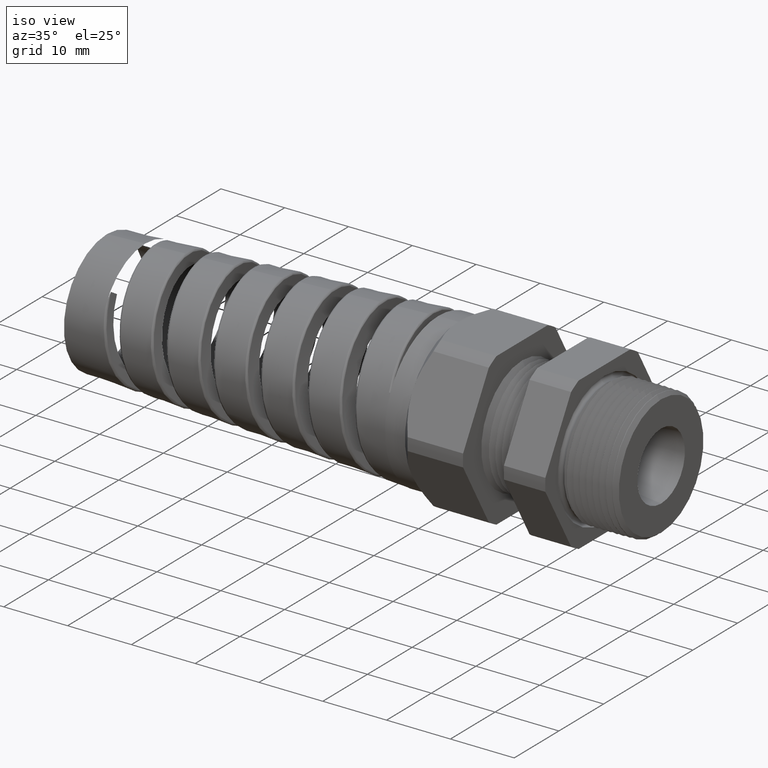
[diagram: clean part render]
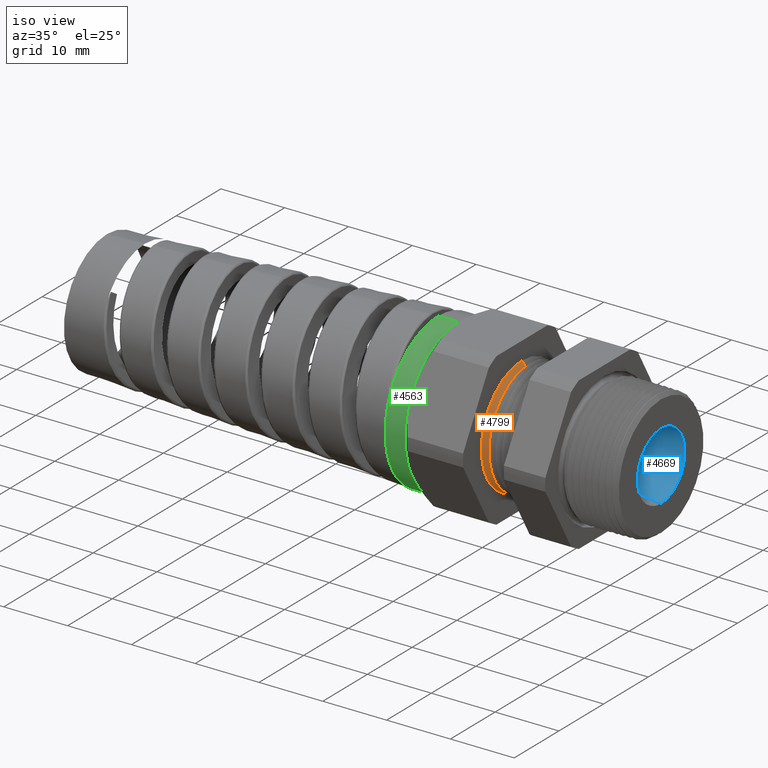
[diagram: same view with three faces highlighted in distinct colors, each labeled with its STEP entity id]
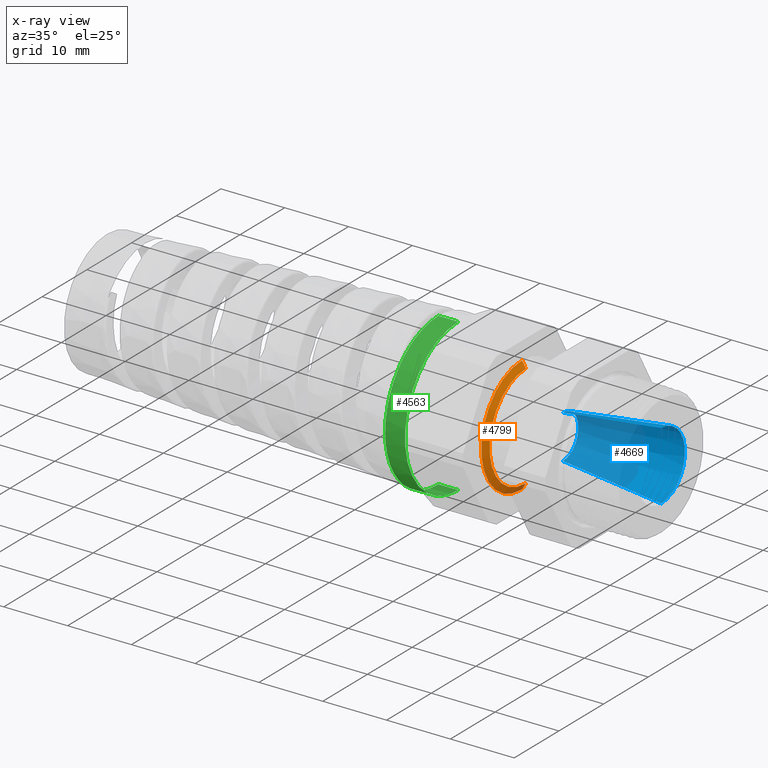
[diagram: x-ray of the same camera — body ghosted, the three highlighted faces saturated]
A machine part, iso view with three faces highlighted in distinct colors.
The next image is the same camera in x-ray (body ghosted, the three faces saturated) — at least one of them is partly hidden behind the body in this view.
Their STEP definitions:

[orange] entity #4799 — the highlighted conical surface has half-angle 60 deg.
#2068 = CARTESIAN_POINT ( 'NONE',  ( -0.7944650443505257800, 0.0000000000000000000, 0.3200000000000001200 ) ) ;
#2069 = CARTESIAN_POINT ( 'NONE',  ( -0.7944650443505257800, 4.163799117101002200E-017, -0.3200000000000001200 ) ) ;
#2101 = DIRECTION ( 'NONE',  ( -0.4999999999999913400, 0.0000000000000000000, 0.8660254037844434800 ) ) ;
#2102 = VECTOR ( 'NONE', #2101, 39.37007874015748900 ) ;
#2103 = CARTESIAN_POINT ( 'NONE',  ( -0.8175590551181102200, 0.0000000000000000000, 0.3600000000000001000 ) ) ;
#2104 = LINE ( 'NONE', #2103, #2102 ) ;
#2105 = CARTESIAN_POINT ( 'NONE',  ( -0.8175590551181102200, 0.0000000000000000000, 0.3600000000000001000 ) ) ;
#2111 = CARTESIAN_POINT ( 'NONE',  ( -0.8175590551181102200, 4.408728476930472900E-017, -0.3600000000000001000 ) ) ;
#2112 = DIRECTION ( 'NONE',  ( -0.4999999999999913400, 1.060575238724912700E-016, -0.8660254037844434800 ) ) ;
#2113 = VECTOR ( 'NONE', #2112, 39.37007874015748900 ) ;
#2114 = CARTESIAN_POINT ( 'NONE',  ( -0.8175590551181102200, 4.408728476930472900E-017, -0.3600000000000001000 ) ) ;
#2119 = LINE ( 'NONE', #2114, #2113 ) ;
#4772 = EDGE_CURVE ( 'NONE', #5581, #5578, #7518, .T. ) ;
#4799 = ADVANCED_FACE ( 'NONE', ( #7602 ), #7601, .T. ) ;
#4800 = EDGE_LOOP ( 'NONE', ( #4801, #4802, #4804, #4806 ) ) ;
#4801 = ORIENTED_EDGE ( 'NONE', *, *, #5577, .F. ) ;
#4802 = ORIENTED_EDGE ( 'NONE', *, *, #4803, .F. ) ;
#4803 = EDGE_CURVE ( 'NONE', #5567, #5566, #7595, .T. ) ;
#4804 = ORIENTED_EDGE ( 'NONE', *, *, #5583, .T. ) ;
#4806 = ORIENTED_EDGE ( 'NONE', *, *, #4772, .T. ) ;
#5566 = VERTEX_POINT ( 'NONE', #2069 ) ;
#5567 = VERTEX_POINT ( 'NONE', #2068 ) ;
#5577 = EDGE_CURVE ( 'NONE', #5566, #5578, #2119, .T. ) ;
#5578 = VERTEX_POINT ( 'NONE', #2111 ) ;
#5581 = VERTEX_POINT ( 'NONE', #2105 ) ;
#5583 = EDGE_CURVE ( 'NONE', #5567, #5581, #2104, .T. ) ;
#7514 = DIRECTION ( 'NONE',  ( 0.0000000000000000000, 0.0000000000000000000, -1.000000000000000000 ) ) ;
#7515 = DIRECTION ( 'NONE',  ( 1.000000000000000000, 0.0000000000000000000, 0.0000000000000000000 ) ) ;
#7516 = CARTESIAN_POINT ( 'NONE',  ( -0.8175590551181102200, 0.0000000000000000000, 0.0000000000000000000 ) ) ;
#7517 = AXIS2_PLACEMENT_3D ( 'NONE', #7516, #7515, #7514 ) ;
#7518 = CIRCLE ( 'NONE', #7517, 0.3600000000000001000 ) ;
#7592 = DIRECTION ( 'NONE',  ( 0.0000000000000000000, 0.0000000000000000000, -1.000000000000000000 ) ) ;
#7593 = DIRECTION ( 'NONE',  ( 1.000000000000000000, 0.0000000000000000000, 0.0000000000000000000 ) ) ;
#7594 = AXIS2_PLACEMENT_3D ( 'NONE', #7600, #7593, #7592 ) ;
#7595 = CIRCLE ( 'NONE', #7594, 0.3200000000000001200 ) ;
#7596 = DIRECTION ( 'NONE',  ( 0.0000000000000000000, 0.0000000000000000000, 1.000000000000000000 ) ) ;
#7597 = DIRECTION ( 'NONE',  ( -1.000000000000000000, 0.0000000000000000000, 0.0000000000000000000 ) ) ;
#7598 = CARTESIAN_POINT ( 'NONE',  ( -0.8175590551181102200, 0.0000000000000000000, 0.0000000000000000000 ) ) ;
#7599 = AXIS2_PLACEMENT_3D ( 'NONE', #7598, #7597, #7596 ) ;
#7600 = CARTESIAN_POINT ( 'NONE',  ( -0.7944650443505257800, 0.0000000000000000000, 0.0000000000000000000 ) ) ;
#7601 = CONICAL_SURFACE ( 'NONE', #7599, 0.3600000000000001000, 1.047197551196607600 ) ;
#7602 = FACE_OUTER_BOUND ( 'NONE', #4800, .T. ) ;

[blue] entity #4669 — the highlighted conical surface has half-angle 7 deg.
#2094 = CARTESIAN_POINT ( 'NONE',  ( -0.5659055118110234400, 0.0000000000000000000, -0.1350000000000000100 ) ) ;
#2100 = CARTESIAN_POINT ( 'NONE',  ( -0.5659055118110234400, 2.108816329049623800E-017, 0.1350000000000000100 ) ) ;
#2133 = DIRECTION ( 'NONE',  ( 0.9925461516413227600, 0.0000000000000000000, -0.1218693434051409100 ) ) ;
#2134 = VECTOR ( 'NONE', #2133, 39.37007874015748900 ) ;
#2135 = CARTESIAN_POINT ( 'NONE',  ( -0.5659055118110234400, 0.0000000000000000000, -0.1350000000000000100 ) ) ;
#2136 = LINE ( 'NONE', #2135, #2134 ) ;
#2137 = CARTESIAN_POINT ( 'NONE',  ( 0.03999999999999998000, 0.0000000000000000000, -0.2093958422163621200 ) ) ;
#2143 = CARTESIAN_POINT ( 'NONE',  ( 0.03999999999999998000, 2.564359479250321300E-017, 0.2093958422163621200 ) ) ;
#2144 = DIRECTION ( 'NONE',  ( 0.9925461516413227600, 1.492469013152954000E-017, 0.1218693434051409100 ) ) ;
#2145 = VECTOR ( 'NONE', #2144, 39.37007874015748900 ) ;
#2146 = CARTESIAN_POINT ( 'NONE',  ( -0.5659055118110234400, 1.653273178848926900E-017, 0.1350000000000000100 ) ) ;
#2152 = LINE ( 'NONE', #2146, #2145 ) ;
#4646 = ORIENTED_EDGE ( 'NONE', *, *, #5594, .F. ) ;
#4647 = ORIENTED_EDGE ( 'NONE', *, *, #4648, .F. ) ;
#4648 = EDGE_CURVE ( 'NONE', #5587, #5584, #7325, .T. ) ;
#4649 = ORIENTED_EDGE ( 'NONE', *, *, #5601, .T. ) ;
#4650 = ORIENTED_EDGE ( 'NONE', *, *, #4667, .T. ) ;
#4667 = EDGE_CURVE ( 'NONE', #5598, #5595, #7367, .T. ) ;
#4669 = ADVANCED_FACE ( 'NONE', ( #7362 ), #7361, .F. ) ;
#4670 = EDGE_LOOP ( 'NONE', ( #4646, #4647, #4649, #4650 ) ) ;
#5584 = VERTEX_POINT ( 'NONE', #2100 ) ;
#5587 = VERTEX_POINT ( 'NONE', #2094 ) ;
#5594 = EDGE_CURVE ( 'NONE', #5584, #5595, #2152, .T. ) ;
#5595 = VERTEX_POINT ( 'NONE', #2143 ) ;
#5598 = VERTEX_POINT ( 'NONE', #2137 ) ;
#5601 = EDGE_CURVE ( 'NONE', #5587, #5598, #2136, .T. ) ;
#7321 = DIRECTION ( 'NONE',  ( 0.0000000000000000000, 0.0000000000000000000, -1.000000000000000000 ) ) ;
#7322 = DIRECTION ( 'NONE',  ( 1.000000000000000000, 0.0000000000000000000, 0.0000000000000000000 ) ) ;
#7323 = CARTESIAN_POINT ( 'NONE',  ( -0.5659055118110234400, 0.0000000000000000000, 0.0000000000000000000 ) ) ;
#7324 = AXIS2_PLACEMENT_3D ( 'NONE', #7323, #7322, #7321 ) ;
#7325 = CIRCLE ( 'NONE', #7324, 0.1350000000000000100 ) ;
#7356 = DIRECTION ( 'NONE',  ( 0.0000000000000000000, 0.0000000000000000000, -1.000000000000000000 ) ) ;
#7357 = DIRECTION ( 'NONE',  ( 1.000000000000000000, 0.0000000000000000000, 0.0000000000000000000 ) ) ;
#7358 = CARTESIAN_POINT ( 'NONE',  ( -0.5659055118110234400, 0.0000000000000000000, 0.0000000000000000000 ) ) ;
#7359 = AXIS2_PLACEMENT_3D ( 'NONE', #7358, #7357, #7356 ) ;
#7361 = CONICAL_SURFACE ( 'NONE', #7359, 0.1350000000000000100, 0.1221730476395964700 ) ;
#7362 = FACE_OUTER_BOUND ( 'NONE', #4670, .T. ) ;
#7363 = DIRECTION ( 'NONE',  ( 0.0000000000000000000, 0.0000000000000000000, -1.000000000000000000 ) ) ;
#7364 = DIRECTION ( 'NONE',  ( 1.000000000000000000, 0.0000000000000000000, 0.0000000000000000000 ) ) ;
#7365 = CARTESIAN_POINT ( 'NONE',  ( 0.03999999999999998000, 0.0000000000000000000, 0.0000000000000000000 ) ) ;
#7366 = AXIS2_PLACEMENT_3D ( 'NONE', #7365, #7364, #7363 ) ;
#7367 = CIRCLE ( 'NONE', #7366, 0.2093958422163621200 ) ;

[green] entity #4563 — the highlighted cylindrical surface (partial cylindrical patch) has radius 11.938 mm, axis along (1, 0, 0).
#2415 = DIRECTION ( 'NONE',  ( 1.000000000000000000, 0.0000000000000000000, 0.0000000000000000000 ) ) ;
#2416 = VECTOR ( 'NONE', #2415, 39.37007874015748100 ) ;
#2417 = CARTESIAN_POINT ( 'NONE',  ( 0.09602717987635048200, 0.0000000000000000000, -0.4699999999999999700 ) ) ;
#2418 = LINE ( 'NONE', #2417, #2416 ) ;
#2424 = CARTESIAN_POINT ( 'NONE',  ( -1.211259842519685200, 0.0000000000000000000, -0.4700000000000000300 ) ) ;
#2728 = CARTESIAN_POINT ( 'NONE',  ( -1.211259842519685200, 0.0000000000000000000, 0.4699999999999999200 ) ) ;
#2729 = DIRECTION ( 'NONE',  ( 1.000000000000000000, 0.0000000000000000000, 0.0000000000000000000 ) ) ;
#2730 = VECTOR ( 'NONE', #2729, 39.37007874015748100 ) ;
#2731 = CARTESIAN_POINT ( 'NONE',  ( 0.09602717987635048200, 5.755839955992559700E-017, 0.4699999999999999700 ) ) ;
#2732 = LINE ( 'NONE', #2731, #2730 ) ;
#2733 = CARTESIAN_POINT ( 'NONE',  ( -1.333939906722928300, 0.0000000000000000000, -0.4699999999999999200 ) ) ;
#2734 = CARTESIAN_POINT ( 'NONE',  ( -1.333939906722928300, 5.755839955992559700E-017, 0.4699999999999999200 ) ) ;
#4498 = VERTEX_POINT ( 'NONE', #6918 ) ;
#4550 = VERTEX_POINT ( 'NONE', #7043 ) ;
#4563 = ADVANCED_FACE ( 'NONE', ( #7110 ), #7108, .T. ) ;
#4564 = EDGE_LOOP ( 'NONE', ( #4565, #4566, #4619, #4620, #4622, #4624 ) ) ;
#4565 = ORIENTED_EDGE ( 'NONE', *, *, #5733, .F. ) ;
#4566 = ORIENTED_EDGE ( 'NONE', *, *, #4618, .F. ) ;
#4618 = EDGE_CURVE ( 'NONE', #5731, #5730, #7224, .T. ) ;
#4619 = ORIENTED_EDGE ( 'NONE', *, *, #5690, .T. ) ;
#4620 = ORIENTED_EDGE ( 'NONE', *, *, #4621, .F. ) ;
#4621 = EDGE_CURVE ( 'NONE', #4550, #5688, #7280, .T. ) ;
#4622 = ORIENTED_EDGE ( 'NONE', *, *, #4623, .F. ) ;
#4623 = EDGE_CURVE ( 'NONE', #4498, #4550, #7275, .T. ) ;
#4624 = ORIENTED_EDGE ( 'NONE', *, *, #4625, .F. ) ;
#4625 = EDGE_CURVE ( 'NONE', #5734, #4498, #7270, .T. ) ;
#5688 = VERTEX_POINT ( 'NONE', #2424 ) ;
#5690 = EDGE_CURVE ( 'NONE', #5731, #5688, #2418, .T. ) ;
#5730 = VERTEX_POINT ( 'NONE', #2734 ) ;
#5731 = VERTEX_POINT ( 'NONE', #2733 ) ;
#5733 = EDGE_CURVE ( 'NONE', #5730, #5734, #2732, .T. ) ;
#5734 = VERTEX_POINT ( 'NONE', #2728 ) ;
#6918 = CARTESIAN_POINT ( 'NONE',  ( -1.211259842519685200, -0.4070319397786864000, 0.2349999999999998800 ) ) ;
#7043 = CARTESIAN_POINT ( 'NONE',  ( -1.211259842519685200, -0.4070319397786862400, -0.2350000000000001000 ) ) ;
#7105 = DIRECTION ( 'NONE',  ( 0.0000000000000000000, 0.0000000000000000000, -1.000000000000000000 ) ) ;
#7106 = DIRECTION ( 'NONE',  ( 1.000000000000000000, 0.0000000000000000000, 0.0000000000000000000 ) ) ;
#7107 = AXIS2_PLACEMENT_3D ( 'NONE', #7109, #7106, #7105 ) ;
#7108 = CYLINDRICAL_SURFACE ( 'NONE', #7107, 0.4699999999999999700 ) ;
#7109 = CARTESIAN_POINT ( 'NONE',  ( 0.09602717987635048200, 0.0000000000000000000, 0.0000000000000000000 ) ) ;
#7110 = FACE_OUTER_BOUND ( 'NONE', #4564, .T. ) ;
#7224 = CIRCLE ( 'NONE', #7283, 0.4699999999999999200 ) ;
#7229 = CARTESIAN_POINT ( 'NONE',  ( -1.333939906722928300, 0.0000000000000000000, 0.0000000000000000000 ) ) ;
#7266 = DIRECTION ( 'NONE',  ( 0.0000000000000000000, 0.0000000000000000000, -1.000000000000000000 ) ) ;
#7267 = DIRECTION ( 'NONE',  ( 1.000000000000000000, 0.0000000000000000000, 0.0000000000000000000 ) ) ;
#7268 = CARTESIAN_POINT ( 'NONE',  ( -1.211259842519685200, 0.0000000000000000000, 0.0000000000000000000 ) ) ;
#7269 = AXIS2_PLACEMENT_3D ( 'NONE', #7268, #7267, #7266 ) ;
#7270 = CIRCLE ( 'NONE', #7269, 0.4699999999999999700 ) ;
#7271 = DIRECTION ( 'NONE',  ( 0.0000000000000000000, 0.0000000000000000000, -1.000000000000000000 ) ) ;
#7272 = DIRECTION ( 'NONE',  ( 1.000000000000000000, 0.0000000000000000000, 0.0000000000000000000 ) ) ;
#7273 = CARTESIAN_POINT ( 'NONE',  ( -1.211259842519685200, 0.0000000000000000000, 0.0000000000000000000 ) ) ;
#7274 = AXIS2_PLACEMENT_3D ( 'NONE', #7273, #7272, #7271 ) ;
#7275 = CIRCLE ( 'NONE', #7274, 0.4699999999999999700 ) ;
#7276 = DIRECTION ( 'NONE',  ( 0.0000000000000000000, 0.0000000000000000000, -1.000000000000000000 ) ) ;
#7277 = DIRECTION ( 'NONE',  ( 1.000000000000000000, 0.0000000000000000000, 0.0000000000000000000 ) ) ;
#7278 = CARTESIAN_POINT ( 'NONE',  ( -1.211259842519685200, 0.0000000000000000000, 0.0000000000000000000 ) ) ;
#7279 = AXIS2_PLACEMENT_3D ( 'NONE', #7278, #7277, #7276 ) ;
#7280 = CIRCLE ( 'NONE', #7279, 0.4699999999999999700 ) ;
#7281 = DIRECTION ( 'NONE',  ( 0.0000000000000000000, 0.0000000000000000000, 1.000000000000000000 ) ) ;
#7282 = DIRECTION ( 'NONE',  ( -1.000000000000000000, 0.0000000000000000000, 0.0000000000000000000 ) ) ;
#7283 = AXIS2_PLACEMENT_3D ( 'NONE', #7229, #7282, #7281 ) ;